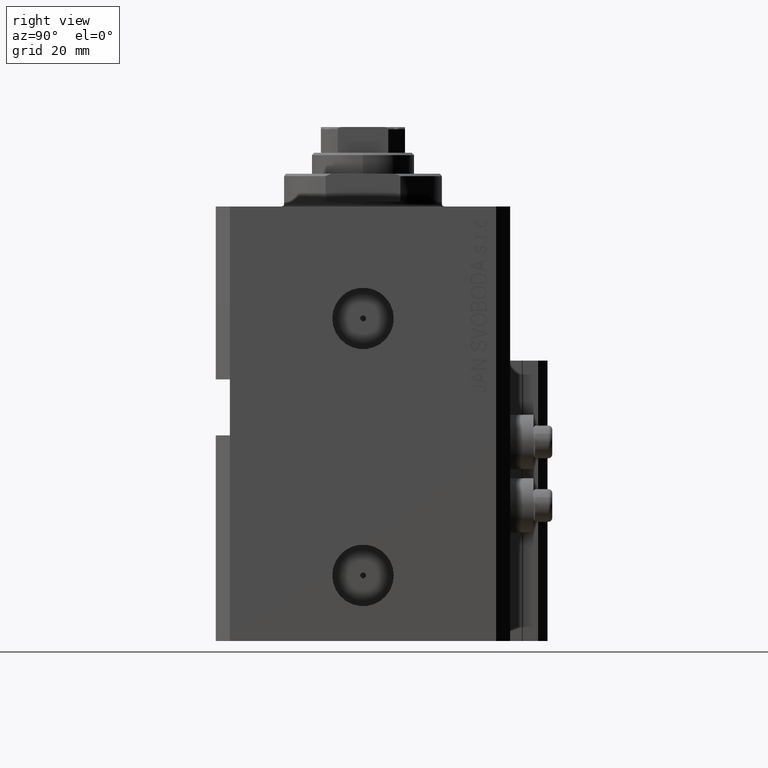
[diagram: clean part render]
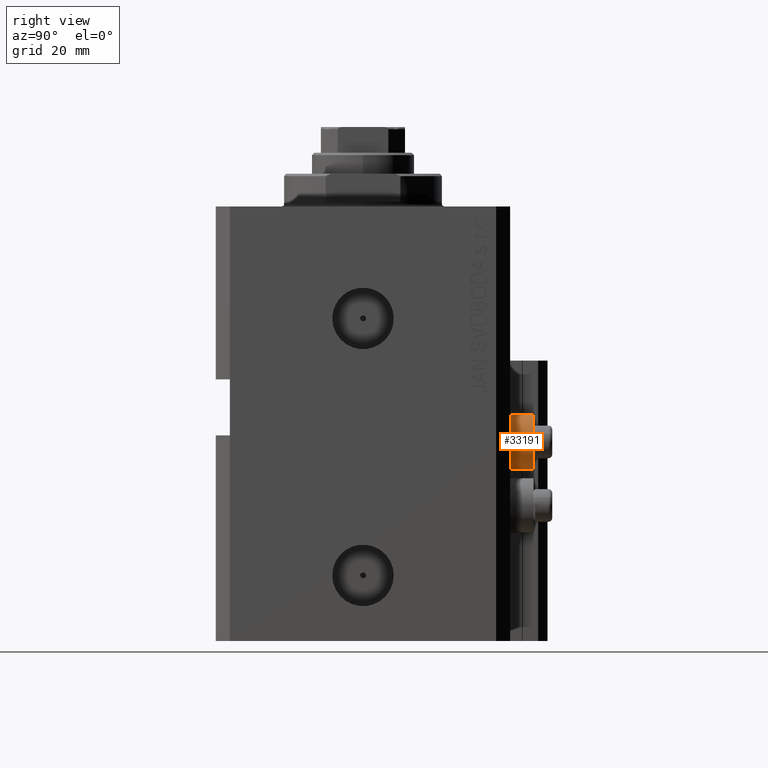
[diagram: same view with one face highlighted and labeled with its STEP entity id]
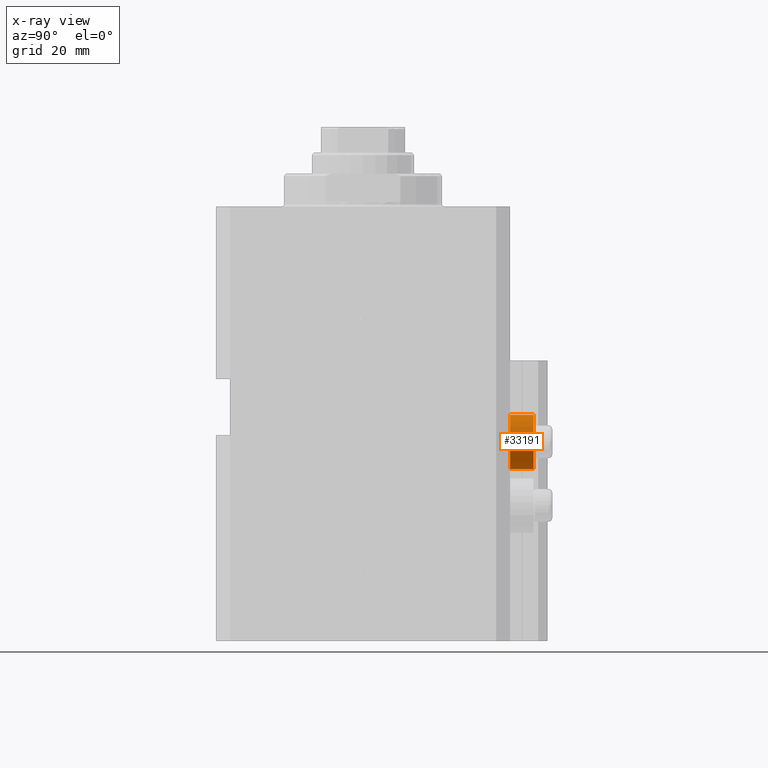
[diagram: x-ray of the same camera — body ghosted, the highlighted face saturated]
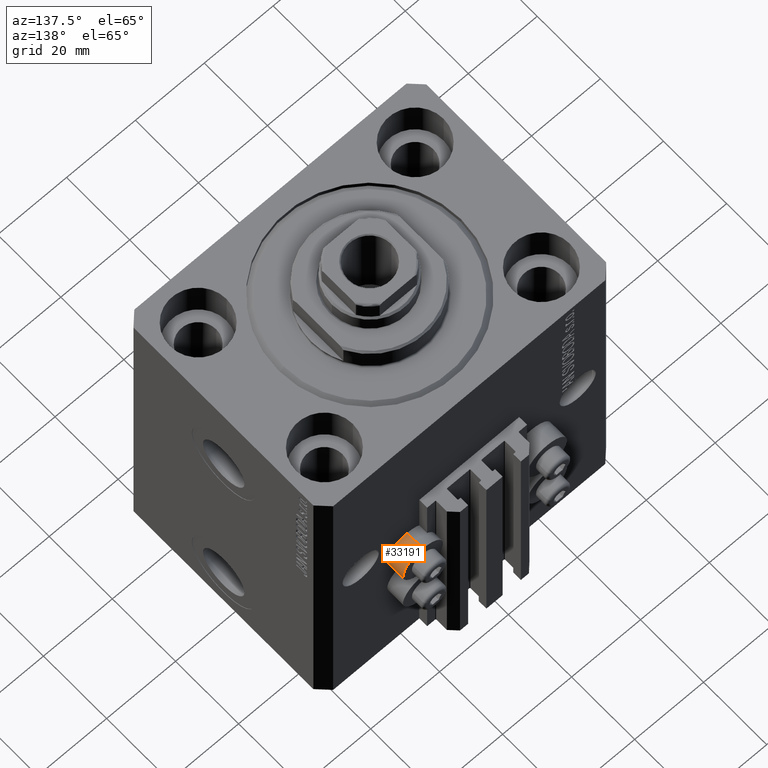
[diagram: same view with one face highlighted and labeled with its STEP entity id]
A machine part, right view. The second image highlights one B-rep face of the part: STEP entity #33191.
The next image is the same camera in x-ray: the body ghosted, the highlighted face saturated — about 0% of this face is hidden behind the body in this view.
A second angle (auxiliary view) of the same face is appended — the face is thin or edge-on in the first view.
In plain terms, the highlighted cylindrical surface (edge-blend (fillet) strip) has radius 5.8 mm, axis along (0, 1, 0).
Its self-contained STEP definition (entity closure, byte-faithful):
#207 = CARTESIAN_POINT ( 'NONE',  ( 18.00000000000000355, 36.49999999996099120, -56.20000000000000284 ) ) ;
#2180 = ORIENTED_EDGE ( 'NONE', *, *, #44676, .T. ) ;
#4351 = DIRECTION ( 'NONE',  ( 0.000000000000000000, 1.000000000000000000, 0.000000000000000000 ) ) ;
#5326 = DIRECTION ( 'NONE',  ( 0.000000000000000000, 0.000000000000000000, 1.000000000000000000 ) ) ;
#5513 = CARTESIAN_POINT ( 'NONE',  ( 18.00000000000000355, 36.49999999996099120, -56.20000000000000284 ) ) ;
#5532 = AXIS2_PLACEMENT_3D ( 'NONE', #38643, #45460, #5326 ) ;
#7368 = EDGE_CURVE ( 'NONE', #28774, #9360, #26252, .T. ) ;
#8829 = EDGE_LOOP ( 'NONE', ( #40608, #2180, #10430, #16090 ) ) ;
#9360 = VERTEX_POINT ( 'NONE', #23288 ) ;
#10430 = ORIENTED_EDGE ( 'NONE', *, *, #11017, .T. ) ;
#11017 = EDGE_CURVE ( 'NONE', #23514, #9360, #13125, .T. ) ;
#11670 = VERTEX_POINT ( 'NONE', #37047 ) ;
#12804 = DIRECTION ( 'NONE',  ( 0.000000000000000000, 0.000000000000000000, 1.000000000000000000 ) ) ;
#13125 = CIRCLE ( 'NONE', #44978, 5.799999999999999822 ) ;
#13286 = CYLINDRICAL_SURFACE ( 'NONE', #17136, 5.799999999999999822 ) ;
#15964 = FACE_OUTER_BOUND ( 'NONE', #8829, .T. ) ;
#16090 = ORIENTED_EDGE ( 'NONE', *, *, #7368, .F. ) ;
#16702 = LINE ( 'NONE', #5513, #26438 ) ;
#17136 = AXIS2_PLACEMENT_3D ( 'NONE', #27630, #42942, #12804 ) ;
#20185 = DIRECTION ( 'NONE',  ( -0.000000000000000000, -1.000000000000000000, -0.000000000000000000 ) ) ;
#22346 = VECTOR ( 'NONE', #4351, 1000.000000000000000 ) ;
#23288 = CARTESIAN_POINT ( 'NONE',  ( 18.00000000000000355, 36.49999999996099120, -44.60000000000000142 ) ) ;
#23514 = VERTEX_POINT ( 'NONE', #207 ) ;
#24247 = DIRECTION ( 'NONE',  ( 0.000000000000000000, 1.000000000000000000, 0.000000000000000000 ) ) ;
#26252 = LINE ( 'NONE', #41329, #22346 ) ;
#26438 = VECTOR ( 'NONE', #24247, 1000.000000000000000 ) ;
#27488 = CARTESIAN_POINT ( 'NONE',  ( 18.00000000000000355, 36.49999999996099120, -50.39999999999999858 ) ) ;
#27630 = CARTESIAN_POINT ( 'NONE',  ( 18.00000000000000355, 36.49999999996099120, -50.39999999999999858 ) ) ;
#28774 = VERTEX_POINT ( 'NONE', #46697 ) ;
#33191 = ADVANCED_FACE ( 'NONE', ( #15964 ), #13286, .T. ) ;
#34943 = EDGE_CURVE ( 'NONE', #11670, #28774, #35834, .T. ) ;
#35834 = CIRCLE ( 'NONE', #5532, 5.799999999999999822 ) ;
#37047 = CARTESIAN_POINT ( 'NONE',  ( 18.00000000000000355, 31.50000000000000000, -56.20000000000000284 ) ) ;
#38643 = CARTESIAN_POINT ( 'NONE',  ( 18.00000000000000355, 31.50000000000000000, -50.39999999999999858 ) ) ;
#40608 = ORIENTED_EDGE ( 'NONE', *, *, #34943, .F. ) ;
#41329 = CARTESIAN_POINT ( 'NONE',  ( 18.00000000000000355, 36.49999999996099120, -44.60000000000000142 ) ) ;
#42320 = DIRECTION ( 'NONE',  ( 0.000000000000000000, 0.000000000000000000, 1.000000000000000000 ) ) ;
#42942 = DIRECTION ( 'NONE',  ( 0.000000000000000000, 1.000000000000000000, 0.000000000000000000 ) ) ;
#44676 = EDGE_CURVE ( 'NONE', #11670, #23514, #16702, .T. ) ;
#44978 = AXIS2_PLACEMENT_3D ( 'NONE', #27488, #20185, #42320 ) ;
#45460 = DIRECTION ( 'NONE',  ( -0.000000000000000000, -1.000000000000000000, -0.000000000000000000 ) ) ;
#46697 = CARTESIAN_POINT ( 'NONE',  ( 18.00000000000000355, 31.50000000000000000, -44.60000000000000142 ) ) ;